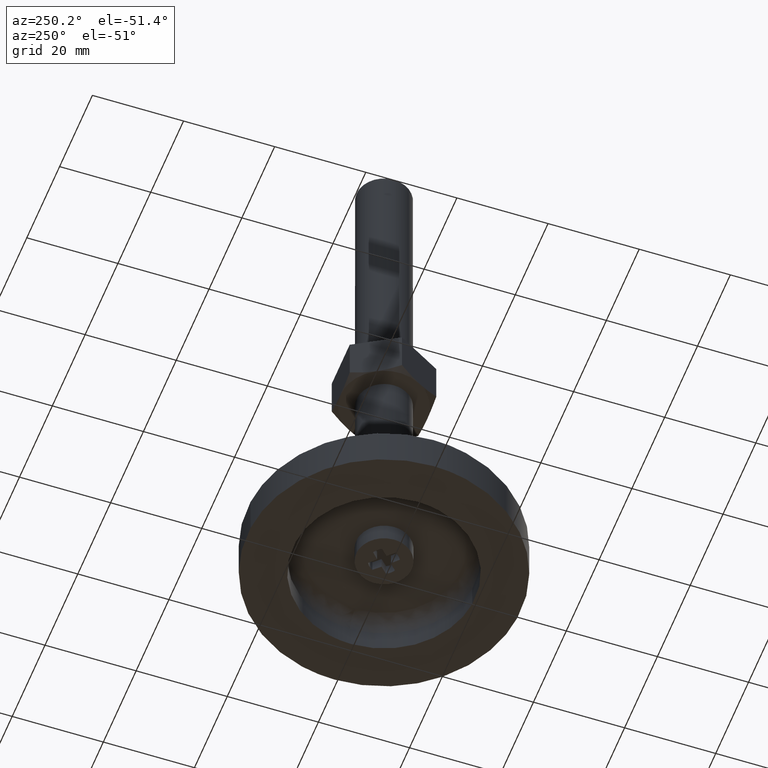
[diagram: clean part render]
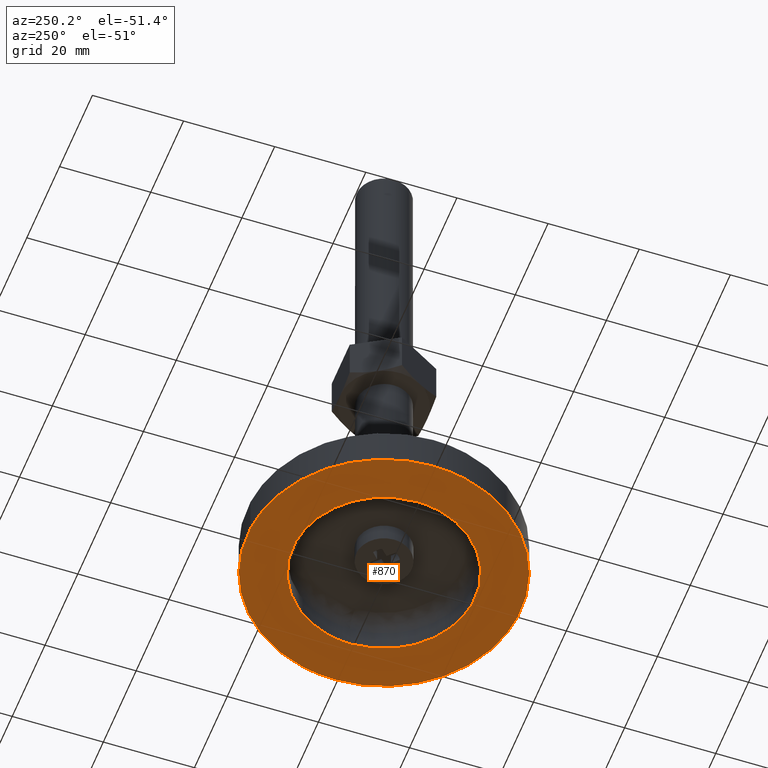
[diagram: same view with one face highlighted and labeled with its STEP entity id]
A machine part, auxiliary view. The second image highlights one B-rep face of the part: STEP entity #870.
In plain terms, the highlighted face is a freeform B-spline surface patch.
Its self-contained STEP definition (entity closure, byte-faithful):
#733=CARTESIAN_POINT('',(32.996999883708362,-32.996261619275792,0.0));
#734=CARTESIAN_POINT('',(-32.997001493033771,-32.996261619275792,0.0));
#735=CARTESIAN_POINT('',(32.996999883708362,32.996260546392179,0.0));
#736=CARTESIAN_POINT('',(-32.997001493033771,32.996260546392179,0.0));
#737=B_SPLINE_SURFACE_WITH_KNOTS('',1,1,((#733,#735),(#734,#736)),.UNSPECIFIED.,.F.,.F.,.U.,(2,2),(2,2),(0.0,65.994001376742119),(0.0,65.992522165667964),.UNSPECIFIED.);
#738=CARTESIAN_POINT('',(-30.0,0.0,0.0));
#739=VERTEX_POINT('',#738);
#740=CARTESIAN_POINT('',(-1.831418658767977,29.944046247875431,2.914335E-016));
#741=VERTEX_POINT('',#740);
#742=CARTESIAN_POINT('',(-30.0,0.0,0.0));
#743=CARTESIAN_POINT('',(-29.999999999999279,28.221217441375661,1.457168E-016));
#744=CARTESIAN_POINT('',(-1.831418658767978,29.944046247875423,2.914335E-016));
#752=(BOUNDED_CURVE()B_SPLINE_CURVE(2,(#742,#743,#744),.UNSPECIFIED.,.F.,.U.)B_SPLINE_CURVE_WITH_KNOTS((3,3),(0.0,0.239333178485718),.UNSPECIFIED.)CURVE()GEOMETRIC_REPRESENTATION_ITEM()RATIONAL_B_SPLINE_CURVE((1.0,0.719603739937854,0.976072505125159))REPRESENTATION_ITEM(''));
#753=EDGE_CURVE('',#739,#741,#752,.T.);
#754=ORIENTED_EDGE('',*,*,#753,.T.);
#755=CARTESIAN_POINT('',(30.0,0.0,0.0));
#756=VERTEX_POINT('',#755);
#757=CARTESIAN_POINT('',(-1.831418658767978,29.944046247875423,2.914335E-016));
#758=CARTESIAN_POINT('',(-0.916564082707766,29.999999999976815,2.872456E-016));
#759=CARTESIAN_POINT('',(1.398132E-012,29.999999999977170,2.827936E-016));
#760=CARTESIAN_POINT('',(30.000000000000671,29.999999999988937,1.370768E-016));
#761=CARTESIAN_POINT('',(30.0,0.0,0.0));
#769=(BOUNDED_CURVE()B_SPLINE_CURVE(2,(#757,#758,#759,#760,#761),.UNSPECIFIED.,.F.,.U.)B_SPLINE_CURVE_WITH_KNOTS((3,2,3),(0.239333178485718,0.250000000000000,0.500000000000000),.UNSPECIFIED.)CURVE()GEOMETRIC_REPRESENTATION_ITEM()RATIONAL_B_SPLINE_CURVE((0.976072505125159,0.987503041248693,1.0,0.707106781186547,1.0))REPRESENTATION_ITEM(''));
#770=EDGE_CURVE('',#741,#756,#769,.T.);
#771=ORIENTED_EDGE('',*,*,#770,.T.);
#772=CARTESIAN_POINT('',(1.831418658767977,-29.944046247875431,-7.077672E-016));
#773=VERTEX_POINT('',#772);
#774=CARTESIAN_POINT('',(30.0,0.0,0.0));
#775=CARTESIAN_POINT('',(29.999999999999279,-28.221217441375661,-3.538836E-016));
#776=CARTESIAN_POINT('',(1.831418658767978,-29.944046247875423,-7.077672E-016));
#784=(BOUNDED_CURVE()B_SPLINE_CURVE(2,(#774,#775,#776),.UNSPECIFIED.,.F.,.U.)B_SPLINE_CURVE_WITH_KNOTS((3,3),(0.500000000000000,0.739333178485718),.UNSPECIFIED.)CURVE()GEOMETRIC_REPRESENTATION_ITEM()RATIONAL_B_SPLINE_CURVE((1.0,0.719603739937854,0.976072505125159))REPRESENTATION_ITEM(''));
#785=EDGE_CURVE('',#756,#773,#784,.T.);
#786=ORIENTED_EDGE('',*,*,#785,.T.);
#787=CARTESIAN_POINT('',(1.831418658767978,-29.944046247875423,-7.077672E-016));
#788=CARTESIAN_POINT('',(0.916564082707764,-29.999999999976815,-6.975963E-016));
#789=CARTESIAN_POINT('',(-1.402872E-012,-29.999999999977181,-6.867844E-016));
#790=CARTESIAN_POINT('',(-30.000000000000671,-29.999999999988937,-3.329009E-016));
#791=CARTESIAN_POINT('',(-30.0,0.0,0.0));
#799=(BOUNDED_CURVE()B_SPLINE_CURVE(2,(#787,#788,#789,#790,#791),.UNSPECIFIED.,.F.,.U.)B_SPLINE_CURVE_WITH_KNOTS((3,2,3),(0.739333178485718,0.750000000000000,1.0),.UNSPECIFIED.)CURVE()GEOMETRIC_REPRESENTATION_ITEM()RATIONAL_B_SPLINE_CURVE((0.976072505125159,0.987503041248693,1.0,0.707106781186547,1.0))REPRESENTATION_ITEM(''));
#800=EDGE_CURVE('',#773,#739,#799,.T.);
#801=ORIENTED_EDGE('',*,*,#800,.T.);
#802=EDGE_LOOP('',(#754,#771,#786,#801));
#803=FACE_OUTER_BOUND('',#802,.T.);
#804=CARTESIAN_POINT('',(20.0,0.0,0.0));
#805=VERTEX_POINT('',#804);
#806=CARTESIAN_POINT('',(1.569167726009478,-19.938347791315291,1.942890E-016));
#807=VERTEX_POINT('',#806);
#808=CARTESIAN_POINT('',(20.0,0.0,0.0));
#809=CARTESIAN_POINT('',(19.999999999999797,-18.487823030162009,9.714451E-017));
#810=CARTESIAN_POINT('',(1.569167726009478,-19.938347791315294,1.942890E-016));
#818=(BOUNDED_CURVE()B_SPLINE_CURVE(2,(#808,#809,#810),.UNSPECIFIED.,.F.,.U.)B_SPLINE_CURVE_WITH_KNOTS((3,3),(0.500000000000000,0.736331422622054),.UNSPECIFIED.)CURVE()GEOMETRIC_REPRESENTATION_ITEM()RATIONAL_B_SPLINE_CURVE((1.0,0.723120515685857,0.969723610754290))REPRESENTATION_ITEM(''));
#819=EDGE_CURVE('',#805,#807,#818,.T.);
#820=ORIENTED_EDGE('',*,*,#819,.F.);
#821=CARTESIAN_POINT('',(-1.569167726009475,19.938347791315291,1.942890E-016));
#822=VERTEX_POINT('',#821);
#823=CARTESIAN_POINT('',(-1.569167726009476,19.938347791315294,1.942890E-016));
#824=CARTESIAN_POINT('',(-0.785795012957504,19.999999999995044,1.907608E-016));
#825=CARTESIAN_POINT('',(3.822205E-013,19.999999999995140,1.869440E-016));
#826=CARTESIAN_POINT('',(20.000000000000181,19.999999999997666,8.979953E-017));
#827=CARTESIAN_POINT('',(20.0,0.0,0.0));
#835=(BOUNDED_CURVE()B_SPLINE_CURVE(2,(#823,#824,#825,#826,#827),.UNSPECIFIED.,.F.,.U.)B_SPLINE_CURVE_WITH_KNOTS((3,2,3),(0.236331422622054,0.250000000000000,0.500000000000000),.UNSPECIFIED.)CURVE()GEOMETRIC_REPRESENTATION_ITEM()RATIONAL_B_SPLINE_CURVE((0.969723610754290,0.983986265500690,1.0,0.707106781186548,1.0))REPRESENTATION_ITEM(''));
#836=EDGE_CURVE('',#822,#805,#835,.T.);
#837=ORIENTED_EDGE('',*,*,#836,.F.);
#838=CARTESIAN_POINT('',(-20.0,0.0,0.0));
#839=VERTEX_POINT('',#838);
#840=CARTESIAN_POINT('',(-20.0,0.0,0.0));
#841=CARTESIAN_POINT('',(-19.999999999999797,18.487823030162009,9.714451E-017));
#842=CARTESIAN_POINT('',(-1.569167726009476,19.938347791315294,1.942890E-016));
#850=(BOUNDED_CURVE()B_SPLINE_CURVE(2,(#840,#841,#842),.UNSPECIFIED.,.F.,.U.)B_SPLINE_CURVE_WITH_KNOTS((3,3),(0.0,0.236331422622054),.UNSPECIFIED.)CURVE()GEOMETRIC_REPRESENTATION_ITEM()RATIONAL_B_SPLINE_CURVE((1.0,0.723120515685857,0.969723610754290))REPRESENTATION_ITEM(''));
#851=EDGE_CURVE('',#839,#822,#850,.T.);
#852=ORIENTED_EDGE('',*,*,#851,.F.);
#853=CARTESIAN_POINT('',(1.569167726009478,-19.938347791315294,1.942890E-016));
#854=CARTESIAN_POINT('',(0.785795012957505,-19.999999999995044,1.907608E-016));
#855=CARTESIAN_POINT('',(-3.824341E-013,-19.999999999995140,1.869440E-016));
#856=CARTESIAN_POINT('',(-20.000000000000181,-19.999999999997666,8.979953E-017));
#857=CARTESIAN_POINT('',(-20.0,0.0,0.0));
#865=(BOUNDED_CURVE()B_SPLINE_CURVE(2,(#853,#854,#855,#856,#857),.UNSPECIFIED.,.F.,.U.)B_SPLINE_CURVE_WITH_KNOTS((3,2,3),(0.736331422622054,0.750000000000000,1.0),.UNSPECIFIED.)CURVE()GEOMETRIC_REPRESENTATION_ITEM()RATIONAL_B_SPLINE_CURVE((0.969723610754290,0.983986265500690,1.0,0.707106781186548,1.0))REPRESENTATION_ITEM(''));
#866=EDGE_CURVE('',#807,#839,#865,.T.);
#867=ORIENTED_EDGE('',*,*,#866,.F.);
#868=EDGE_LOOP('',(#820,#837,#852,#867));
#869=FACE_BOUND('',#868,.T.);
#870=ADVANCED_FACE('',(#803,#869),#737,.T.);